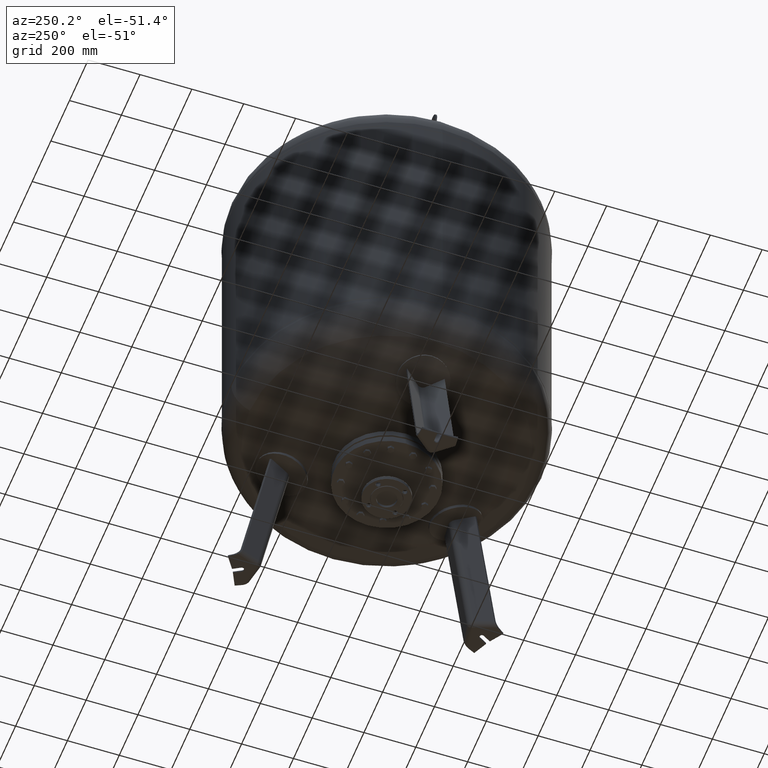
[diagram: clean part render]
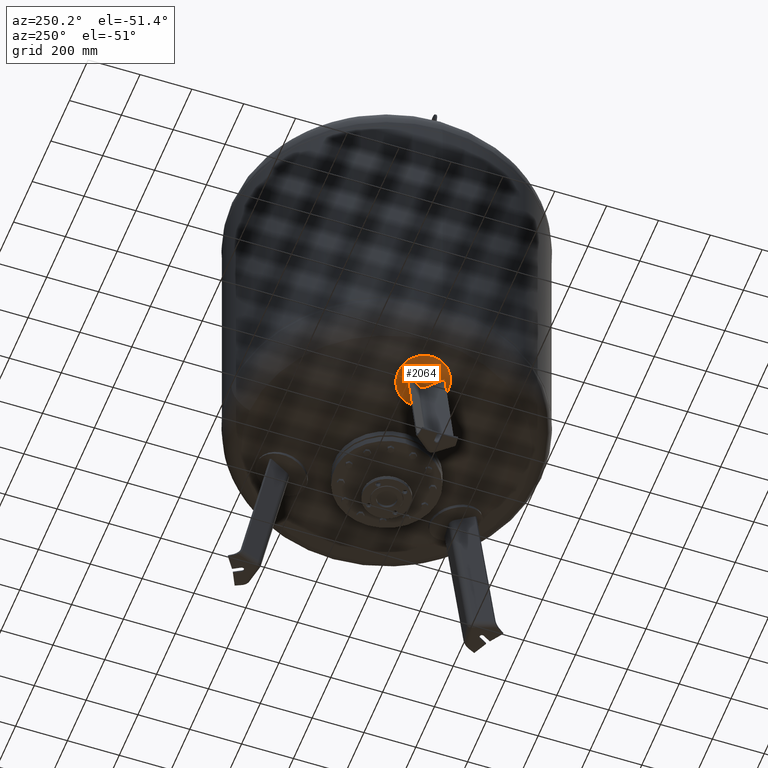
[diagram: same view with one face highlighted and labeled with its STEP entity id]
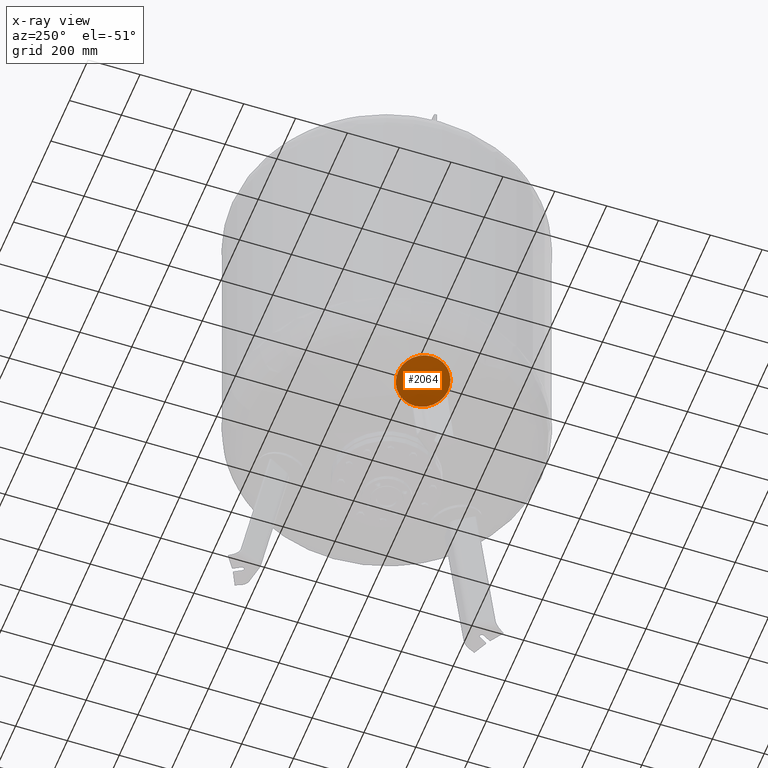
[diagram: x-ray of the same camera — body ghosted, the highlighted face saturated]
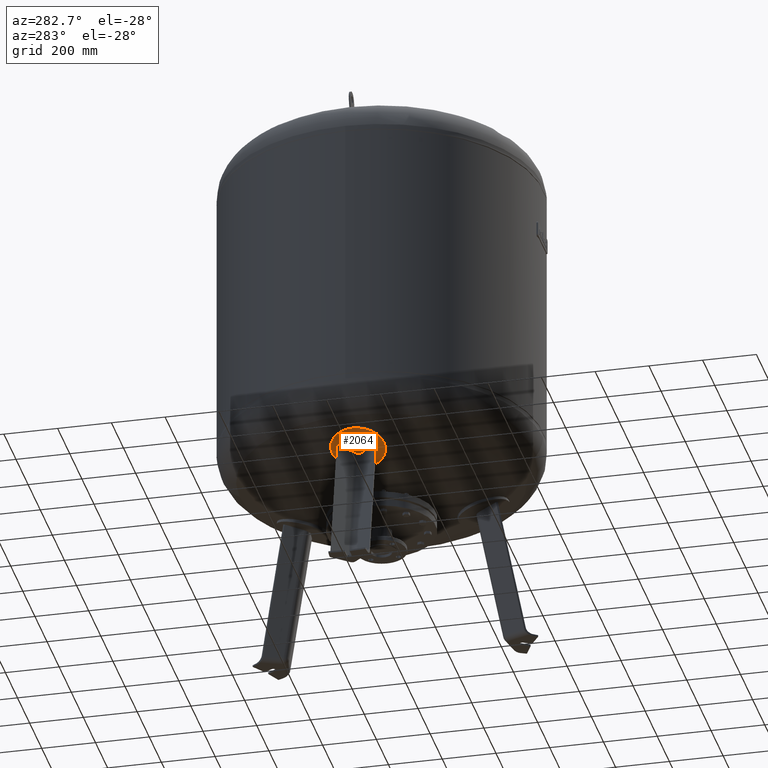
[diagram: same view with one face highlighted and labeled with its STEP entity id]
A machine part, auxiliary view. The second image highlights one B-rep face of the part: STEP entity #2064.
The next image is the same camera in x-ray: the body ghosted, the highlighted face saturated — about 0% of this face is hidden behind the body in this view.
A second angle (auxiliary view) of the same face is appended — the face is thin or edge-on in the first view.
In plain terms, the highlighted spherical surface has radius 1006 mm.
Its self-contained STEP definition (entity closure, byte-faithful):
#1972=CARTESIAN_POINT('',(-294.672642996865650,-0.165533304317197,486.033440505856840));
#1973=VERTEX_POINT('',#1972);
#1982=CARTESIAN_POINT('',(-483.776358116728890,-0.165533304317093,551.147071397288300));
#1983=VERTEX_POINT('',#1982);
#1984=CARTESIAN_POINT('',(-389.224500556797350,-0.165533304317152,518.590255951572660));
#1985=DIRECTION('',(-0.325568154457157,1.714934E-016,-0.945518575599317));
#1986=DIRECTION('',(0.945518575599317,-4.586798E-016,-0.325568154457157));
#1987=AXIS2_PLACEMENT_3D('',#1984,#1985,#1986);
#1988=CIRCLE('',#1987,100.0);
#1989=EDGE_CURVE('',#1983,#1973,#1988,.T.);
#2045=CARTESIAN_POINT('',(-389.224500556797350,-0.165533304317152,518.590255951572660));
#2046=DIRECTION('',(-0.325568154457157,1.714934E-016,-0.945518575599317));
#2047=DIRECTION('',(0.945518575599317,-4.586798E-016,-0.325568154457157));
#2048=AXIS2_PLACEMENT_3D('',#2045,#2046,#2047);
#2049=CIRCLE('',#2048,100.0);
#2050=EDGE_CURVE('',#1973,#1983,#2049,.T.);
#2055=CARTESIAN_POINT('',(-63.325086243934038,-0.165533304317323,1465.070880027170500));
#2056=DIRECTION('',(0.0,-1.0,0.0));
#2057=DIRECTION('',(0.945518575599317,-4.586798E-016,-0.325568154457157));
#2058=AXIS2_PLACEMENT_3D('',#2055,#2056,#2057);
#2059=SPHERICAL_SURFACE('',#2058,1006.0);
#2060=ORIENTED_EDGE('',*,*,#2050,.T.);
#2061=ORIENTED_EDGE('',*,*,#1989,.T.);
#2062=EDGE_LOOP('',(#2060,#2061));
#2063=FACE_OUTER_BOUND('',#2062,.T.);
#2064=ADVANCED_FACE('',(#2063),#2059,.T.);